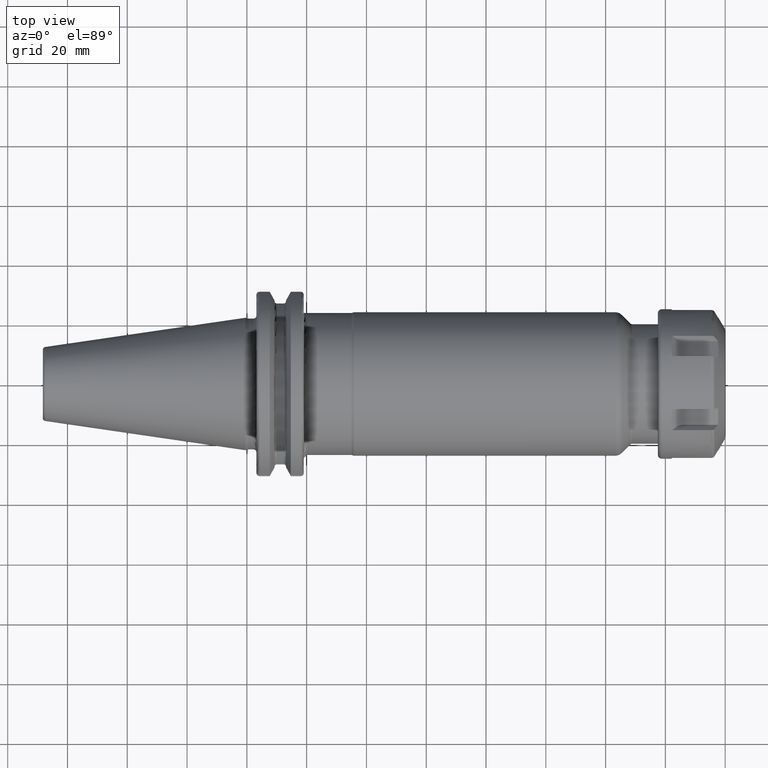
[diagram: clean part render]
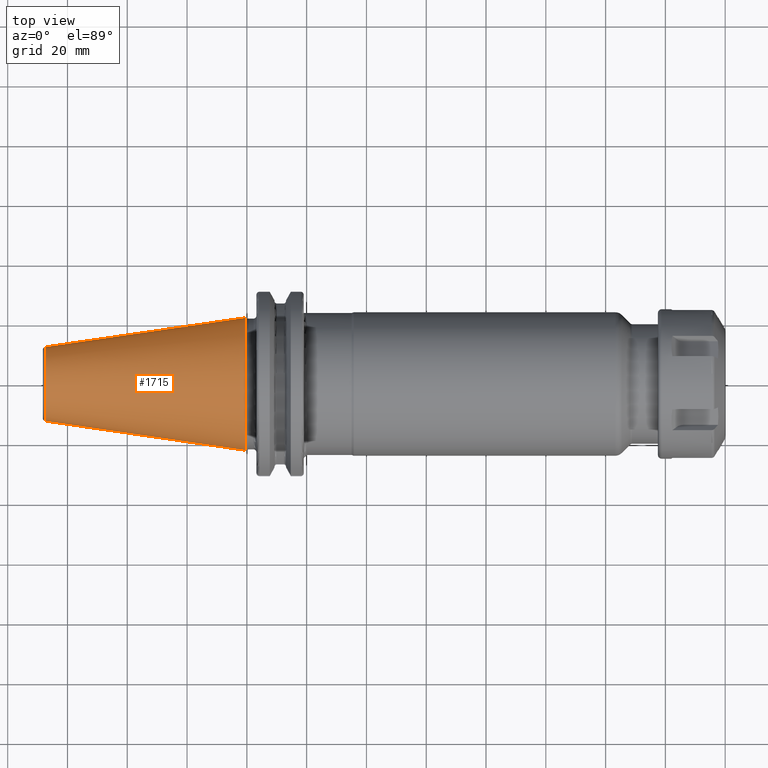
[diagram: same view with one face highlighted and labeled with its STEP entity id]
A machine part, top view. The second image highlights one B-rep face of the part: STEP entity #1715.
In plain terms, the highlighted conical surface has half-angle 8.298 deg.
Its self-contained STEP definition (entity closure, byte-faithful):
#37=CARTESIAN_POINT('',(-6.743710273571E1,0.E0,0.E0));
#38=DIRECTION('',(1.E0,0.E0,0.E0));
#39=DIRECTION('',(0.E0,1.E0,0.E0));
#40=AXIS2_PLACEMENT_3D('',#37,#38,#39);
#42=CARTESIAN_POINT('',(-4.896823332305E-1,0.E0,0.E0));
#43=DIRECTION('',(1.E0,0.E0,0.E0));
#44=DIRECTION('',(0.E0,1.E0,0.E0));
#45=AXIS2_PLACEMENT_3D('',#42,#43,#44);
#47=DIRECTION('',(-9.895312636440E-1,-1.443186691705E-1,0.E0));
#48=VECTOR('',#47,6.765568998391E1);
#49=CARTESIAN_POINT('',(-4.896823332305E-1,2.215358204157E1,0.E0));
#50=LINE('',#49,#48);
#51=DIRECTION('',(-9.895312636440E-1,1.443186691705E-1,0.E0));
#52=VECTOR('',#51,6.765568998391E1);
#53=CARTESIAN_POINT('',(-4.896823332305E-1,-2.215358204157E1,0.E0));
#54=LINE('',#53,#52);
#1365=CARTESIAN_POINT('',(-6.743710273571E1,1.238960290128E1,0.E0));
#1367=VERTEX_POINT('',#1365);
#1369=CARTESIAN_POINT('',(-6.743710273571E1,-1.238960290128E1,0.E0));
#1371=VERTEX_POINT('',#1369);
#1433=CARTESIAN_POINT('',(-4.896823332305E-1,2.215358204157E1,0.E0));
#1434=VERTEX_POINT('',#1433);
#1435=CARTESIAN_POINT('',(-4.896823332305E-1,-2.215358204157E1,0.E0));
#1436=VERTEX_POINT('',#1435);
#1701=CARTESIAN_POINT('',(-3.396339253447E1,0.E0,0.E0));
#1702=DIRECTION('',(1.E0,0.E0,0.E0));
#1703=DIRECTION('',(0.E0,-1.E0,0.E0));
#1704=AXIS2_PLACEMENT_3D('',#1701,#1702,#1703);
#1705=CONICAL_SURFACE('',#1704,1.727159247143E1,8.297826828206E0);
#1707=ORIENTED_EDGE('',*,*,#1706,.F.);
#1709=ORIENTED_EDGE('',*,*,#1708,.T.);
#1711=ORIENTED_EDGE('',*,*,#1710,.T.);
#1712=ORIENTED_EDGE('',*,*,#1694,.F.);
#1713=EDGE_LOOP('',(#1707,#1709,#1711,#1712));
#1714=FACE_OUTER_BOUND('',#1713,.F.);
#1715=ADVANCED_FACE('',(#1714),#1705,.T.);
#41=CIRCLE('',#40,1.238960290128E1);
#46=CIRCLE('',#45,2.215358204157E1);
#1694=EDGE_CURVE('',#1367,#1371,#41,.T.);
#1706=EDGE_CURVE('',#1434,#1367,#50,.T.);
#1708=EDGE_CURVE('',#1434,#1436,#46,.T.);
#1710=EDGE_CURVE('',#1436,#1371,#54,.T.);